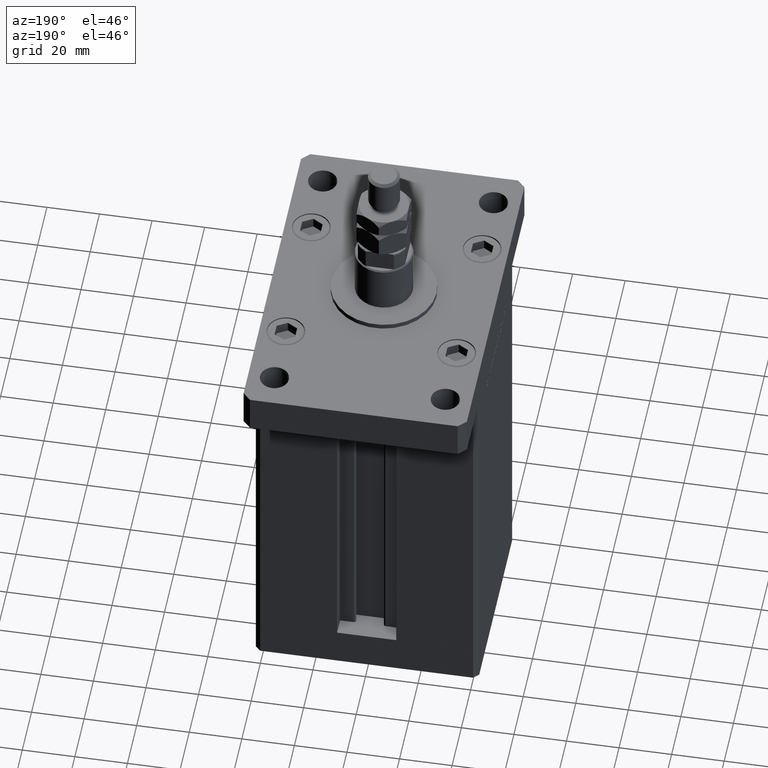
[diagram: clean part render]
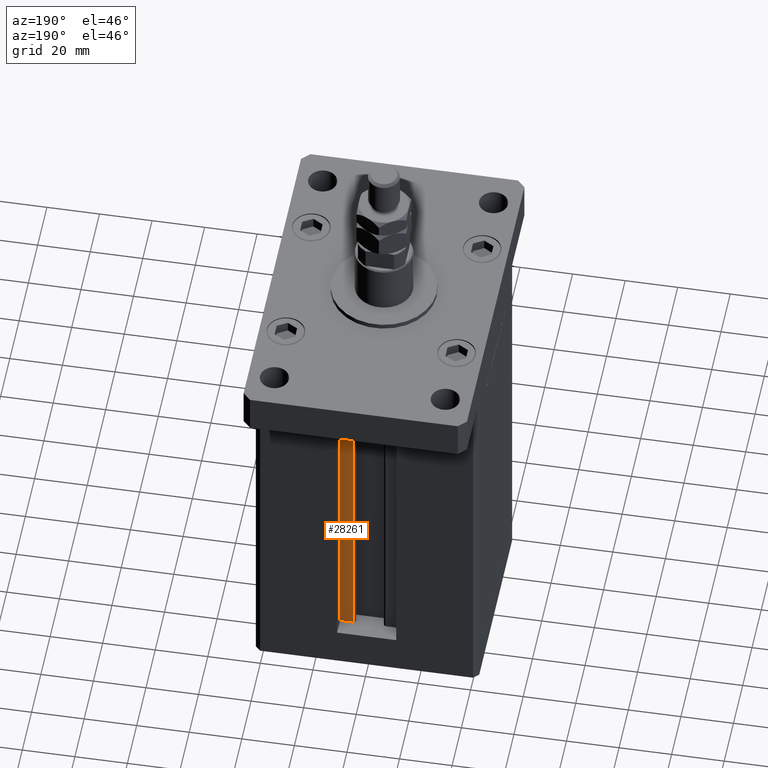
[diagram: same view with one face highlighted and labeled with its STEP entity id]
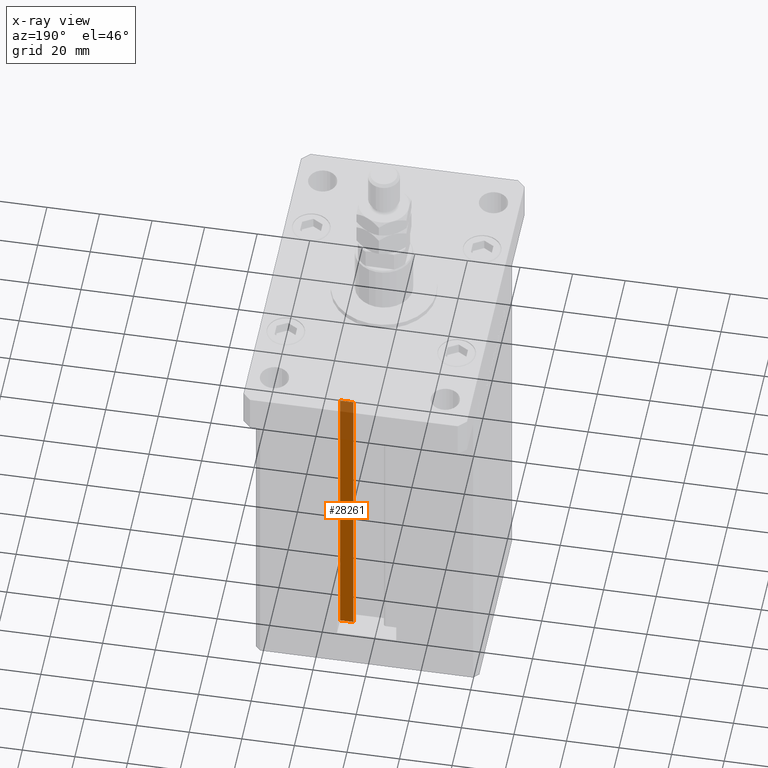
[diagram: x-ray of the same camera — body ghosted, the highlighted face saturated]
A machine part, auxiliary view. The second image highlights one B-rep face of the part: STEP entity #28261.
The next image is the same camera in x-ray: the body ghosted, the highlighted face saturated — about 18% of this face is hidden behind the body in this view.
In plain terms, the highlighted planar face has unit normal (0, -1, 0).
Its self-contained STEP definition (entity closure, byte-faithful):
#134 = CARTESIAN_POINT ( 'NONE',  ( 11.25000000000000000, 30.99999999999999289, 118.5000000000000000 ) ) ;
#868 = CARTESIAN_POINT ( 'NONE',  ( 6.183333333333999704, 30.99999999999999289, 0.000000000000000000 ) ) ;
#877 = VERTEX_POINT ( 'NONE', #134 ) ;
#2044 = DIRECTION ( 'NONE',  ( 0.000000000000000000, -1.000000000000000000, 0.000000000000000000 ) ) ;
#2741 = ORIENTED_EDGE ( 'NONE', *, *, #52773, .F. ) ;
#3220 = CARTESIAN_POINT ( 'NONE',  ( 11.25000000000000000, 30.99999999999999289, 0.000000000000000000 ) ) ;
#6234 = PLANE ( 'NONE',  #23287 ) ;
#9844 = VECTOR ( 'NONE', #21250, 1000.000000000000000 ) ;
#15792 = LINE ( 'NONE', #3220, #32419 ) ;
#17487 = ORIENTED_EDGE ( 'NONE', *, *, #23393, .F. ) ;
#19078 = CARTESIAN_POINT ( 'NONE',  ( 6.183333333333999704, 30.99999999999999289, 0.000000000000000000 ) ) ;
#21250 = DIRECTION ( 'NONE',  ( -0.000000000000000000, -0.000000000000000000, 1.000000000000000000 ) ) ;
#22093 = LINE ( 'NONE', #868, #9844 ) ;
#23287 = AXIS2_PLACEMENT_3D ( 'NONE', #19078, #2044, #44769 ) ;
#23393 = EDGE_CURVE ( 'NONE', #49829, #50466, #37855, .T. ) ;
#25231 = VERTEX_POINT ( 'NONE', #54820 ) ;
#26308 = CARTESIAN_POINT ( 'NONE',  ( 11.25000000000000000, 30.99999999999999289, 0.000000000000000000 ) ) ;
#28261 = ADVANCED_FACE ( 'NONE', ( #43660 ), #6234, .F. ) ;
#28930 = CARTESIAN_POINT ( 'NONE',  ( 6.183333333333999704, 30.99999999999999289, 0.000000000000000000 ) ) ;
#29729 = EDGE_CURVE ( 'NONE', #877, #25231, #33224, .T. ) ;
#31499 = EDGE_CURVE ( 'NONE', #49829, #25231, #22093, .T. ) ;
#32419 = VECTOR ( 'NONE', #50391, 1000.000000000000000 ) ;
#33224 = LINE ( 'NONE', #54451, #38331 ) ;
#34312 = CARTESIAN_POINT ( 'NONE',  ( 6.183333333333999704, 30.99999999999999289, 0.000000000000000000 ) ) ;
#36438 = VECTOR ( 'NONE', #45953, 1000.000000000000000 ) ;
#37855 = LINE ( 'NONE', #28930, #36438 ) ;
#38331 = VECTOR ( 'NONE', #54183, 1000.000000000000000 ) ;
#43345 = ORIENTED_EDGE ( 'NONE', *, *, #31499, .T. ) ;
#43660 = FACE_OUTER_BOUND ( 'NONE', #53088, .T. ) ;
#44769 = DIRECTION ( 'NONE',  ( 0.000000000000000000, -0.000000000000000000, -1.000000000000000000 ) ) ;
#45953 = DIRECTION ( 'NONE',  ( 1.000000000000000000, 0.000000000000000000, 0.000000000000000000 ) ) ;
#46823 = ORIENTED_EDGE ( 'NONE', *, *, #29729, .F. ) ;
#49829 = VERTEX_POINT ( 'NONE', #34312 ) ;
#50391 = DIRECTION ( 'NONE',  ( -0.000000000000000000, -0.000000000000000000, 1.000000000000000000 ) ) ;
#50466 = VERTEX_POINT ( 'NONE', #26308 ) ;
#52773 = EDGE_CURVE ( 'NONE', #50466, #877, #15792, .T. ) ;
#53088 = EDGE_LOOP ( 'NONE', ( #2741, #17487, #43345, #46823 ) ) ;
#54183 = DIRECTION ( 'NONE',  ( -1.000000000000000000, 0.000000000000000000, 0.000000000000000000 ) ) ;
#54451 = CARTESIAN_POINT ( 'NONE',  ( 0.000000000000000000, 30.99999999999999289, 118.5000000000000000 ) ) ;
#54820 = CARTESIAN_POINT ( 'NONE',  ( 6.183333333333999704, 30.99999999999999289, 118.5000000000000000 ) ) ;